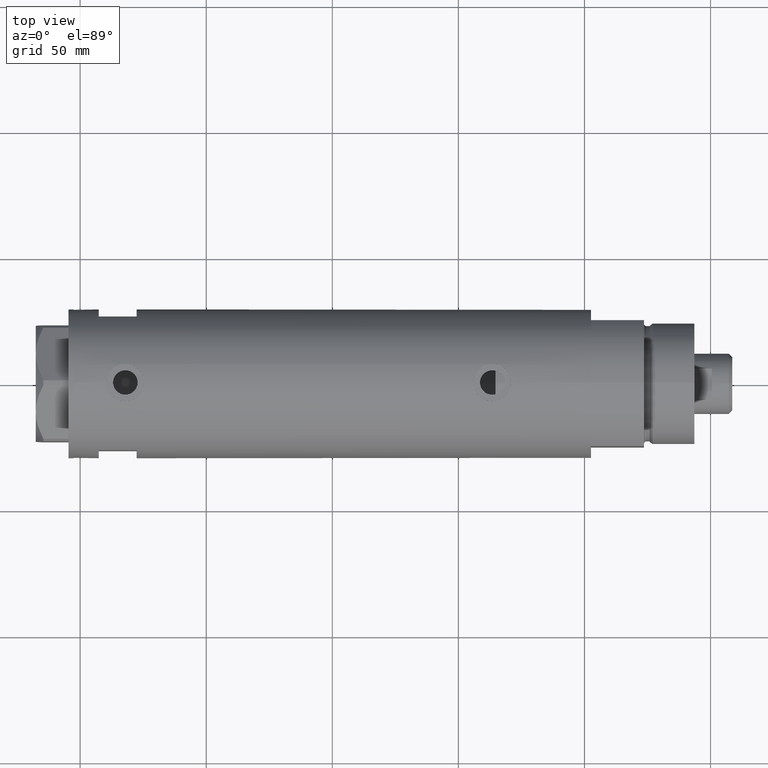
[diagram: clean part render]
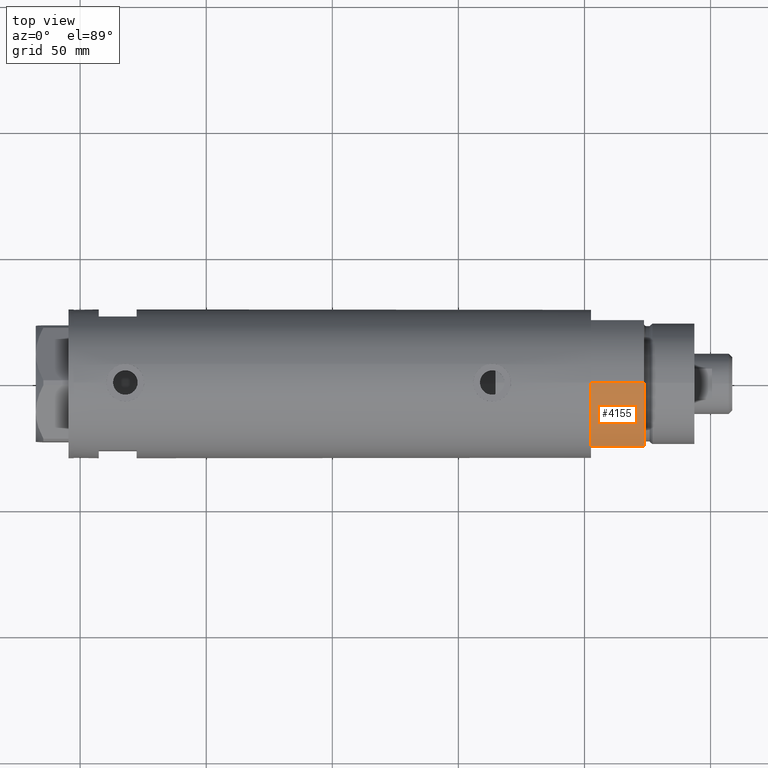
[diagram: same view with one face highlighted and labeled with its STEP entity id]
A machine part, top view. The second image highlights one B-rep face of the part: STEP entity #4155.
In plain terms, the highlighted cylindrical surface (partial cylindrical patch) has radius 29.5 mm, axis along (-1, -0, 0).
Its self-contained STEP definition (entity closure, byte-faithful):
#327 = CARTESIAN_POINT ( 'NONE',  ( -15.66045976336583045, -24.99999999999999645, 20.99999999999999645 ) ) ;
#612 = LINE ( 'NONE', #1431, #4165 ) ;
#1006 = AXIS2_PLACEMENT_3D ( 'NONE', #1973, #4635, #3463 ) ;
#1133 = ORIENTED_EDGE ( 'NONE', *, *, #2668, .T. ) ;
#1166 = AXIS2_PLACEMENT_3D ( 'NONE', #2640, #2279, #3328 ) ;
#1182 = FACE_OUTER_BOUND ( 'NONE', #2348, .T. ) ;
#1303 = CARTESIAN_POINT ( 'NONE',  ( -29.50000000000000355, 0.000000000000000000, 0.000000000000000000 ) ) ;
#1431 = CARTESIAN_POINT ( 'NONE',  ( -29.50000000000000355, 0.000000000000000000, 21.00000000000000000 ) ) ;
#1785 = DIRECTION ( 'NONE',  ( -0.000000000000000000, -0.000000000000000000, -1.000000000000000000 ) ) ;
#1853 = CIRCLE ( 'NONE', #4489, 29.50000000000000355 ) ;
#1973 = CARTESIAN_POINT ( 'NONE',  ( 0.000000000000000000, 0.000000000000000000, 21.00000000000000000 ) ) ;
#2184 = CARTESIAN_POINT ( 'NONE',  ( 0.000000000000000000, 0.000000000000000000, 0.000000000000000000 ) ) ;
#2279 = DIRECTION ( 'NONE',  ( -0.000000000000000000, -0.000000000000000000, -1.000000000000000000 ) ) ;
#2301 = CIRCLE ( 'NONE', #1006, 29.50000000000000355 ) ;
#2304 = CARTESIAN_POINT ( 'NONE',  ( -29.50000000000000355, 0.000000000000000000, 21.00000000000000000 ) ) ;
#2348 = EDGE_LOOP ( 'NONE', ( #2465, #1133, #4671, #3525 ) ) ;
#2441 = EDGE_CURVE ( 'NONE', #4274, #3815, #2301, .T. ) ;
#2465 = ORIENTED_EDGE ( 'NONE', *, *, #2441, .F. ) ;
#2640 = CARTESIAN_POINT ( 'NONE',  ( 0.000000000000000000, 0.000000000000000000, 21.00000000000000000 ) ) ;
#2668 = EDGE_CURVE ( 'NONE', #4274, #4306, #612, .T. ) ;
#2980 = DIRECTION ( 'NONE',  ( 1.000000000000000000, 0.000000000000000000, 0.000000000000000000 ) ) ;
#3089 = VECTOR ( 'NONE', #4354, 1000.000000000000000 ) ;
#3328 = DIRECTION ( 'NONE',  ( -1.000000000000000000, 0.000000000000000000, 0.000000000000000000 ) ) ;
#3369 = CARTESIAN_POINT ( 'NONE',  ( -15.66045976336582690, -25.00000000000000000, 0.000000000000000000 ) ) ;
#3463 = DIRECTION ( 'NONE',  ( 1.000000000000000000, 0.000000000000000000, 0.000000000000000000 ) ) ;
#3525 = ORIENTED_EDGE ( 'NONE', *, *, #3541, .T. ) ;
#3541 = EDGE_CURVE ( 'NONE', #4591, #3815, #3628, .T. ) ;
#3628 = LINE ( 'NONE', #3969, #3089 ) ;
#3703 = DIRECTION ( 'NONE',  ( 0.000000000000000000, 0.000000000000000000, 1.000000000000000000 ) ) ;
#3815 = VERTEX_POINT ( 'NONE', #327 ) ;
#3969 = CARTESIAN_POINT ( 'NONE',  ( -15.66045976336583401, -25.00000000000000000, 0.000000000000000000 ) ) ;
#4137 = EDGE_CURVE ( 'NONE', #4306, #4591, #1853, .T. ) ;
#4155 = ADVANCED_FACE ( 'NONE', ( #1182 ), #4449, .T. ) ;
#4165 = VECTOR ( 'NONE', #1785, 1000.000000000000000 ) ;
#4274 = VERTEX_POINT ( 'NONE', #2304 ) ;
#4306 = VERTEX_POINT ( 'NONE', #1303 ) ;
#4354 = DIRECTION ( 'NONE',  ( -0.000000000000000000, -0.000000000000000000, 1.000000000000000000 ) ) ;
#4449 = CYLINDRICAL_SURFACE ( 'NONE', #1166, 29.50000000000000355 ) ;
#4489 = AXIS2_PLACEMENT_3D ( 'NONE', #2184, #3703, #2980 ) ;
#4591 = VERTEX_POINT ( 'NONE', #3369 ) ;
#4635 = DIRECTION ( 'NONE',  ( 0.000000000000000000, 0.000000000000000000, 1.000000000000000000 ) ) ;
#4671 = ORIENTED_EDGE ( 'NONE', *, *, #4137, .T. ) ;